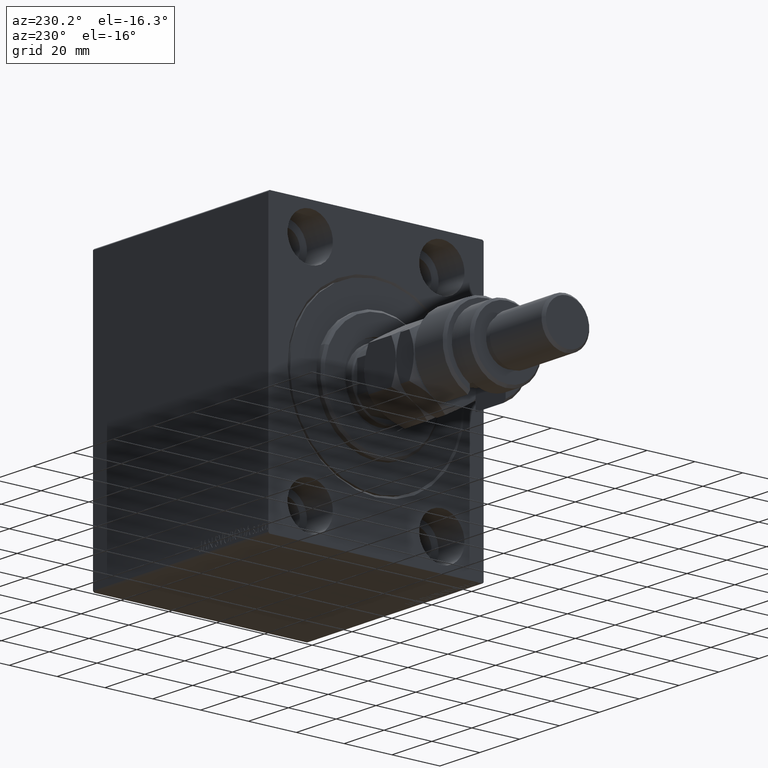
[diagram: clean part render]
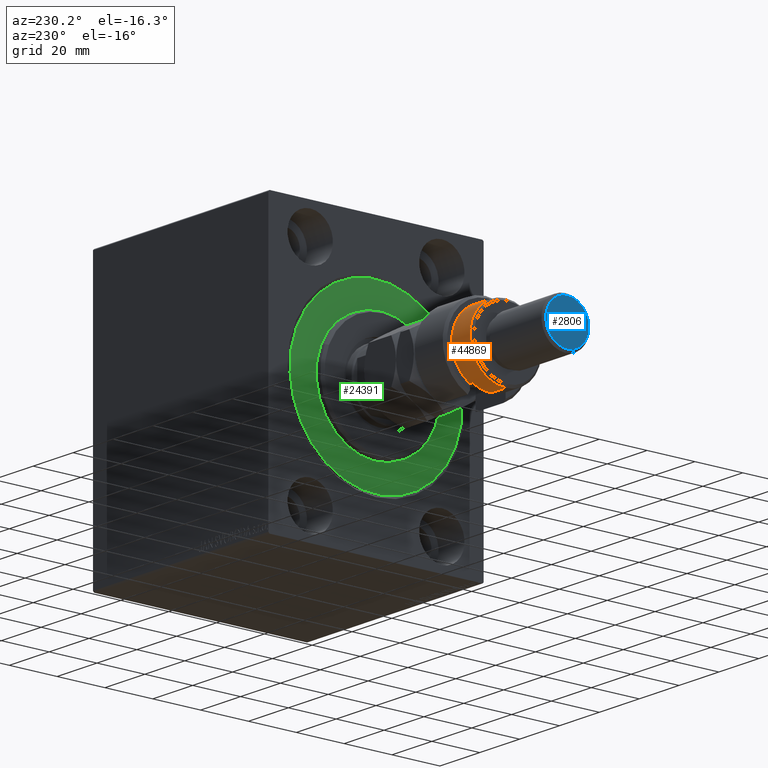
[diagram: same view with three faces highlighted in distinct colors, each labeled with its STEP entity id]
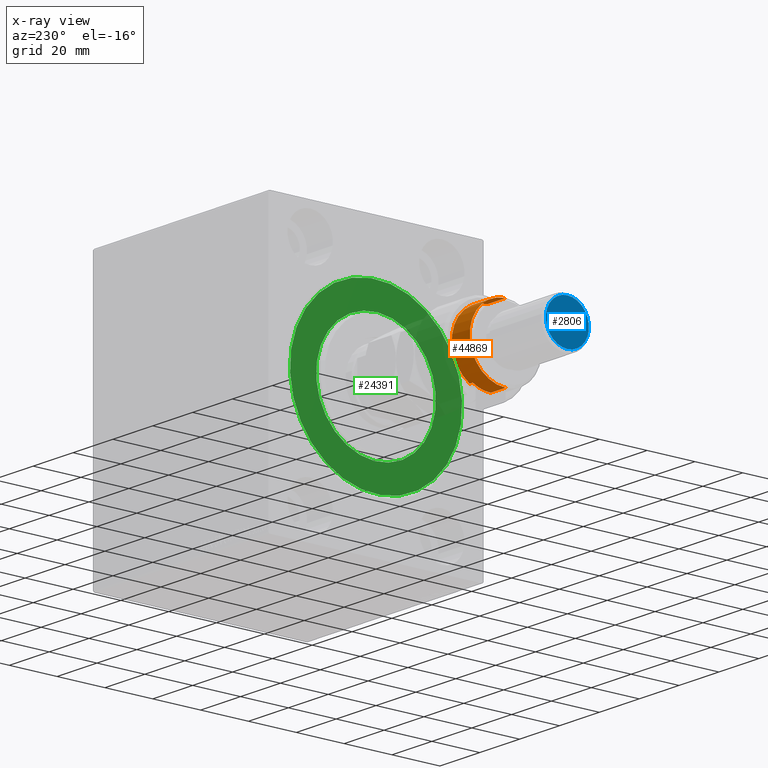
[diagram: x-ray of the same camera — body ghosted, the three highlighted faces saturated]
A machine part, auxiliary view with three faces highlighted in distinct colors.
The next image is the same camera in x-ray (body ghosted, the three faces saturated) — at least one of them is partly hidden behind the body in this view.
Their STEP definitions:

[orange] entity #44869 — the highlighted cylindrical surface (partial cylindrical patch) has radius 15 mm, axis along (1, -0, -0).
#1093 = CARTESIAN_POINT ( 'NONE',  ( 0.000000000000000000, 0.000000000000000000, 17.50000000000000000 ) ) ;
#1369 = VECTOR ( 'NONE', #24442, 1000.000000000000000 ) ;
#1444 = CARTESIAN_POINT ( 'NONE',  ( -15.00000000000000000, 0.000000000000000000, 24.99999999999997868 ) ) ;
#2723 = CARTESIAN_POINT ( 'NONE',  ( 15.00000000000000000, 1.836970198721029589E-15, 26.00000000000000355 ) ) ;
#2799 = EDGE_CURVE ( 'NONE', #37414, #5207, #19494, .T. ) ;
#3058 = VERTEX_POINT ( 'NONE', #1444 ) ;
#5207 = VERTEX_POINT ( 'NONE', #13655 ) ;
#5428 = DIRECTION ( 'NONE',  ( -1.000000000000000000, 0.000000000000000000, 0.000000000000000000 ) ) ;
#5714 = VECTOR ( 'NONE', #18283, 1000.000000000000000 ) ;
#7122 = DIRECTION ( 'NONE',  ( 0.000000000000000000, 0.000000000000000000, 1.000000000000000000 ) ) ;
#9190 = EDGE_CURVE ( 'NONE', #35624, #33561, #27832, .T. ) ;
#11530 = EDGE_CURVE ( 'NONE', #3058, #20772, #21130, .T. ) ;
#12974 = EDGE_LOOP ( 'NONE', ( #21937, #39821, #34367, #15323, #37193, #27598 ) ) ;
#13655 = CARTESIAN_POINT ( 'NONE',  ( -12.99038105676658006, 7.500000000000000000, 17.50000000000000000 ) ) ;
#13935 = VECTOR ( 'NONE', #45765, 1000.000000000000000 ) ;
#15323 = ORIENTED_EDGE ( 'NONE', *, *, #30087, .T. ) ;
#18283 = DIRECTION ( 'NONE',  ( -0.000000000000000000, -0.000000000000000000, -1.000000000000000000 ) ) ;
#18512 = LINE ( 'NONE', #39717, #5714 ) ;
#18898 = CYLINDRICAL_SURFACE ( 'NONE', #35330, 15.00000000000000000 ) ;
#19494 = CIRCLE ( 'NONE', #25520, 15.00000000000000000 ) ;
#19859 = DIRECTION ( 'NONE',  ( 1.000000000000000000, 0.000000000000000000, 0.000000000000000000 ) ) ;
#20772 = VERTEX_POINT ( 'NONE', #23416 ) ;
#21130 = CIRCLE ( 'NONE', #26423, 15.00000000000000000 ) ;
#21937 = ORIENTED_EDGE ( 'NONE', *, *, #11530, .T. ) ;
#22441 = DIRECTION ( 'NONE',  ( -0.000000000000000000, -0.000000000000000000, -1.000000000000000000 ) ) ;
#23400 = DIRECTION ( 'NONE',  ( 0.000000000000000000, 0.000000000000000000, -1.000000000000000000 ) ) ;
#23416 = CARTESIAN_POINT ( 'NONE',  ( 15.00000000000000000, 1.836970198721029589E-15, 24.99999999999997868 ) ) ;
#24442 = DIRECTION ( 'NONE',  ( -0.000000000000000000, -0.000000000000000000, -1.000000000000000000 ) ) ;
#25520 = AXIS2_PLACEMENT_3D ( 'NONE', #1093, #29421, #33892 ) ;
#26423 = AXIS2_PLACEMENT_3D ( 'NONE', #41295, #23400, #19859 ) ;
#26657 = CARTESIAN_POINT ( 'NONE',  ( -12.99038105676658006, 7.500000000000000000, 16.00000000000000000 ) ) ;
#27560 = CARTESIAN_POINT ( 'NONE',  ( -15.00000000000000000, 0.000000000000000000, 17.50000000000000000 ) ) ;
#27598 = ORIENTED_EDGE ( 'NONE', *, *, #33343, .F. ) ;
#27832 = CIRCLE ( 'NONE', #33126, 15.00000000000000000 ) ;
#29421 = DIRECTION ( 'NONE',  ( 0.000000000000000000, 0.000000000000000000, -1.000000000000000000 ) ) ;
#29533 = CARTESIAN_POINT ( 'NONE',  ( 0.000000000000000000, 0.000000000000000000, 16.00000000000000000 ) ) ;
#30087 = EDGE_CURVE ( 'NONE', #33561, #5207, #38691, .T. ) ;
#33126 = AXIS2_PLACEMENT_3D ( 'NONE', #29533, #7122, #42961 ) ;
#33343 = EDGE_CURVE ( 'NONE', #3058, #37414, #18512, .T. ) ;
#33522 = CARTESIAN_POINT ( 'NONE',  ( 0.000000000000000000, 0.000000000000000000, 26.00000000000000355 ) ) ;
#33561 = VERTEX_POINT ( 'NONE', #26657 ) ;
#33892 = DIRECTION ( 'NONE',  ( -1.000000000000000000, 0.000000000000000000, 0.000000000000000000 ) ) ;
#34367 = ORIENTED_EDGE ( 'NONE', *, *, #9190, .T. ) ;
#35270 = LINE ( 'NONE', #2723, #1369 ) ;
#35330 = AXIS2_PLACEMENT_3D ( 'NONE', #33522, #22441, #5428 ) ;
#35624 = VERTEX_POINT ( 'NONE', #37097 ) ;
#35625 = CARTESIAN_POINT ( 'NONE',  ( -12.99038105676658006, 7.500000000000000000, 26.00000000000000355 ) ) ;
#37097 = CARTESIAN_POINT ( 'NONE',  ( 15.00000000000000000, 1.836970198721029589E-15, 16.00000000000000000 ) ) ;
#37193 = ORIENTED_EDGE ( 'NONE', *, *, #2799, .F. ) ;
#37414 = VERTEX_POINT ( 'NONE', #27560 ) ;
#38411 = EDGE_CURVE ( 'NONE', #20772, #35624, #35270, .T. ) ;
#38691 = LINE ( 'NONE', #35625, #13935 ) ;
#39717 = CARTESIAN_POINT ( 'NONE',  ( -15.00000000000000000, 0.000000000000000000, 26.00000000000000355 ) ) ;
#39821 = ORIENTED_EDGE ( 'NONE', *, *, #38411, .T. ) ;
#41295 = CARTESIAN_POINT ( 'NONE',  ( 0.000000000000000000, 0.000000000000000000, 24.99999999999997868 ) ) ;
#42961 = DIRECTION ( 'NONE',  ( 1.000000000000000000, 0.000000000000000000, 0.000000000000000000 ) ) ;
#44574 = FACE_OUTER_BOUND ( 'NONE', #12974, .T. ) ;
#44869 = ADVANCED_FACE ( 'NONE', ( #44574 ), #18898, .T. ) ;
#45765 = DIRECTION ( 'NONE',  ( 0.000000000000000000, 0.000000000000000000, 1.000000000000000000 ) ) ;

[blue] entity #2806 — the highlighted planar face has unit normal (-1, 0, 0).
#1668 = DIRECTION ( 'NONE',  ( 0.000000000000000000, 0.000000000000000000, 1.000000000000000000 ) ) ;
#1768 = CARTESIAN_POINT ( 'NONE',  ( 8.999999999999987566, 1.163414459189984894E-15, 56.00000000000000711 ) ) ;
#2806 = ADVANCED_FACE ( 'NONE', ( #15944 ), #11942, .T. ) ;
#3437 = VERTEX_POINT ( 'NONE', #1768 ) ;
#5334 = CARTESIAN_POINT ( 'NONE',  ( 0.000000000000000000, 0.000000000000000000, 56.00000000000000711 ) ) ;
#8174 = DIRECTION ( 'NONE',  ( 1.000000000000000000, 0.000000000000000000, 0.000000000000000000 ) ) ;
#9268 = ORIENTED_EDGE ( 'NONE', *, *, #40397, .T. ) ;
#10508 = CARTESIAN_POINT ( 'NONE',  ( -8.999999999999987566, 0.000000000000000000, 56.00000000000000711 ) ) ;
#11027 = EDGE_LOOP ( 'NONE', ( #21553, #9268 ) ) ;
#11942 = PLANE ( 'NONE',  #29247 ) ;
#15944 = FACE_OUTER_BOUND ( 'NONE', #11027, .T. ) ;
#19737 = DIRECTION ( 'NONE',  ( 0.000000000000000000, 0.000000000000000000, 1.000000000000000000 ) ) ;
#20378 = VERTEX_POINT ( 'NONE', #10508 ) ;
#21553 = ORIENTED_EDGE ( 'NONE', *, *, #37535, .T. ) ;
#22474 = AXIS2_PLACEMENT_3D ( 'NONE', #36480, #36711, #8174 ) ;
#22541 = AXIS2_PLACEMENT_3D ( 'NONE', #31139, #1668, #31362 ) ;
#26349 = DIRECTION ( 'NONE',  ( 1.000000000000000000, 0.000000000000000000, -0.000000000000000000 ) ) ;
#29247 = AXIS2_PLACEMENT_3D ( 'NONE', #5334, #19737, #26349 ) ;
#31139 = CARTESIAN_POINT ( 'NONE',  ( 0.000000000000000000, 0.000000000000000000, 56.00000000000000711 ) ) ;
#31362 = DIRECTION ( 'NONE',  ( 1.000000000000000000, 0.000000000000000000, 0.000000000000000000 ) ) ;
#36480 = CARTESIAN_POINT ( 'NONE',  ( 0.000000000000000000, 0.000000000000000000, 56.00000000000000711 ) ) ;
#36711 = DIRECTION ( 'NONE',  ( 0.000000000000000000, 0.000000000000000000, 1.000000000000000000 ) ) ;
#37535 = EDGE_CURVE ( 'NONE', #20378, #3437, #42776, .T. ) ;
#40397 = EDGE_CURVE ( 'NONE', #3437, #20378, #45088, .T. ) ;
#42776 = CIRCLE ( 'NONE', #22474, 8.999999999999987566 ) ;
#45088 = CIRCLE ( 'NONE', #22541, 8.999999999999987566 ) ;

[green] entity #24391 — the highlighted planar face has unit normal (1, 0, -0).
#850 = CARTESIAN_POINT ( 'NONE',  ( 0.000000000000000000, 3.061616997868383043E-15, -25.00000000000000000 ) ) ;
#1528 = EDGE_LOOP ( 'NONE', ( #9893, #16586 ) ) ;
#2026 = CARTESIAN_POINT ( 'NONE',  ( 0.000000000000000000, 0.000000000000000000, 0.000000000000000000 ) ) ;
#2100 = AXIS2_PLACEMENT_3D ( 'NONE', #35513, #6988, #3914 ) ;
#2740 = DIRECTION ( 'NONE',  ( 1.000000000000000000, -0.000000000000000000, 0.000000000000000000 ) ) ;
#3914 = DIRECTION ( 'NONE',  ( 0.000000000000000000, 0.000000000000000000, 1.000000000000000000 ) ) ;
#4710 = VERTEX_POINT ( 'NONE', #41142 ) ;
#5738 = ORIENTED_EDGE ( 'NONE', *, *, #42850, .F. ) ;
#6926 = FACE_OUTER_BOUND ( 'NONE', #12737, .T. ) ;
#6988 = DIRECTION ( 'NONE',  ( -1.000000000000000000, 0.000000000000000000, 0.000000000000000000 ) ) ;
#8205 = AXIS2_PLACEMENT_3D ( 'NONE', #16669, #2740, #38576 ) ;
#9671 = VERTEX_POINT ( 'NONE', #10061 ) ;
#9893 = ORIENTED_EDGE ( 'NONE', *, *, #43705, .F. ) ;
#10061 = CARTESIAN_POINT ( 'NONE',  ( 0.000000000000000000, 4.408728476930470856E-15, 36.00000000000000000 ) ) ;
#11085 = ORIENTED_EDGE ( 'NONE', *, *, #38366, .F. ) ;
#11137 = FACE_BOUND ( 'NONE', #1528, .T. ) ;
#12737 = EDGE_LOOP ( 'NONE', ( #5738, #11085 ) ) ;
#14456 = PLANE ( 'NONE',  #44735 ) ;
#14689 = DIRECTION ( 'NONE',  ( 0.000000000000000000, 0.000000000000000000, 1.000000000000000000 ) ) ;
#16586 = ORIENTED_EDGE ( 'NONE', *, *, #17947, .F. ) ;
#16650 = DIRECTION ( 'NONE',  ( -1.000000000000000000, 0.000000000000000000, 0.000000000000000000 ) ) ;
#16669 = CARTESIAN_POINT ( 'NONE',  ( 0.000000000000000000, 0.000000000000000000, 0.000000000000000000 ) ) ;
#17947 = EDGE_CURVE ( 'NONE', #35012, #4710, #34877, .T. ) ;
#21794 = DIRECTION ( 'NONE',  ( -1.000000000000000000, 0.000000000000000000, 0.000000000000000000 ) ) ;
#23621 = AXIS2_PLACEMENT_3D ( 'NONE', #29422, #36703, #29884 ) ;
#24391 = ADVANCED_FACE ( 'NONE', ( #11137, #6926 ), #14456, .F. ) ;
#26891 = VERTEX_POINT ( 'NONE', #39320 ) ;
#27006 = CIRCLE ( 'NONE', #30768, 36.00000000000000000 ) ;
#28854 = CARTESIAN_POINT ( 'NONE',  ( 0.000000000000000000, 0.000000000000000000, 0.000000000000000000 ) ) ;
#29422 = CARTESIAN_POINT ( 'NONE',  ( 0.000000000000000000, 0.000000000000000000, 0.000000000000000000 ) ) ;
#29884 = DIRECTION ( 'NONE',  ( 0.000000000000000000, 0.000000000000000000, -1.000000000000000000 ) ) ;
#30768 = AXIS2_PLACEMENT_3D ( 'NONE', #2026, #16650, #41419 ) ;
#32290 = CIRCLE ( 'NONE', #8205, 25.00000000000000000 ) ;
#34877 = CIRCLE ( 'NONE', #23621, 25.00000000000000000 ) ;
#35012 = VERTEX_POINT ( 'NONE', #850 ) ;
#35513 = CARTESIAN_POINT ( 'NONE',  ( 0.000000000000000000, 0.000000000000000000, 0.000000000000000000 ) ) ;
#36703 = DIRECTION ( 'NONE',  ( 1.000000000000000000, -0.000000000000000000, 0.000000000000000000 ) ) ;
#38366 = EDGE_CURVE ( 'NONE', #9671, #26891, #27006, .T. ) ;
#38576 = DIRECTION ( 'NONE',  ( 0.000000000000000000, 0.000000000000000000, -1.000000000000000000 ) ) ;
#39029 = CIRCLE ( 'NONE', #2100, 36.00000000000000000 ) ;
#39320 = CARTESIAN_POINT ( 'NONE',  ( 0.000000000000000000, 0.000000000000000000, -36.00000000000000000 ) ) ;
#41142 = CARTESIAN_POINT ( 'NONE',  ( 0.000000000000000000, 0.000000000000000000, 25.00000000000000000 ) ) ;
#41419 = DIRECTION ( 'NONE',  ( 0.000000000000000000, 0.000000000000000000, 1.000000000000000000 ) ) ;
#42850 = EDGE_CURVE ( 'NONE', #26891, #9671, #39029, .T. ) ;
#43705 = EDGE_CURVE ( 'NONE', #4710, #35012, #32290, .T. ) ;
#44735 = AXIS2_PLACEMENT_3D ( 'NONE', #28854, #21794, #14689 ) ;